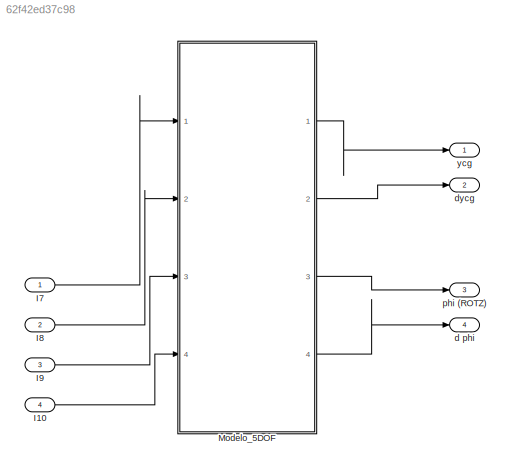
MODEL slx_62f42ed37c98
KIND model
CONFIG AbsTol = auto
CONFIG EnableMultiTasking = off
CONFIG FixedStep = T
CONFIG MaxStep = auto
CONFIG MinStep = auto
CONFIG RelTol = 1e-3
CONFIG SampleTimeConstraint = Unconstrained
CONFIG SolverName = VariableStepAuto
CONFIG StartTime = 0.0
CONFIG StopTime = 5
BLOCK [Inport] I10
  Port = 4
BLOCK [Inport] I7
BLOCK [Inport] I8
  Port = 2
BLOCK [Inport] I9
  Port = 3
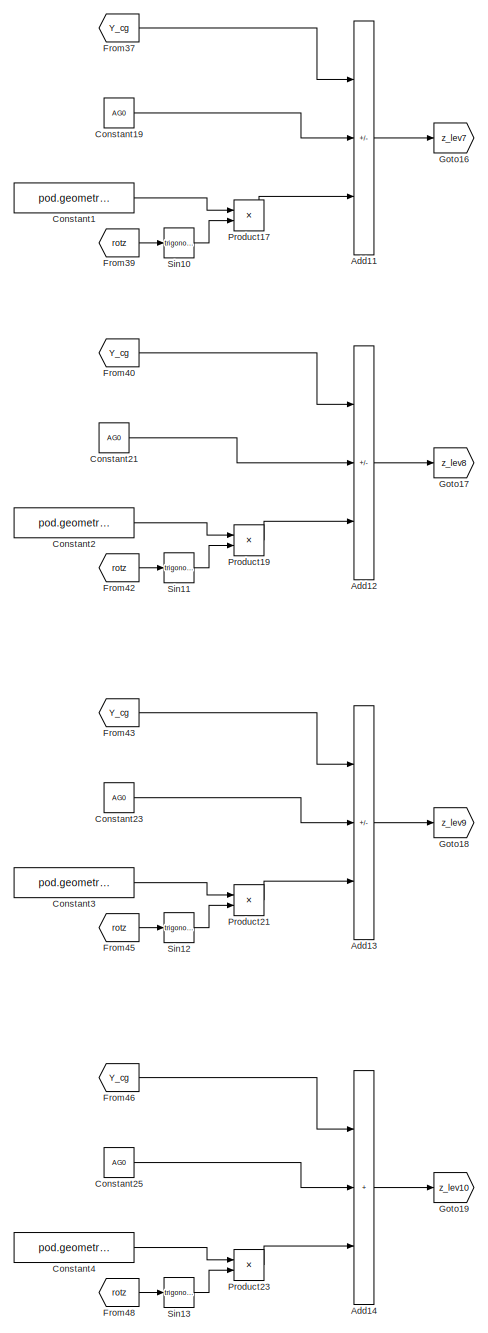
[diagram: Modelo_5DOF - part 1/3, right side, full height]
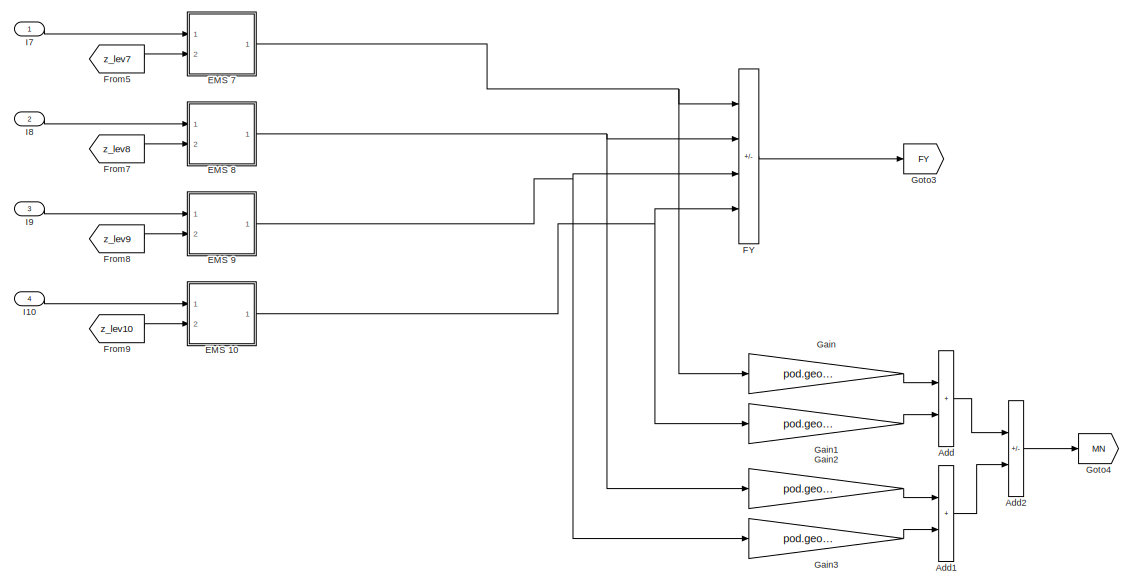
[diagram: Modelo_5DOF - part 2/3, middle left region]
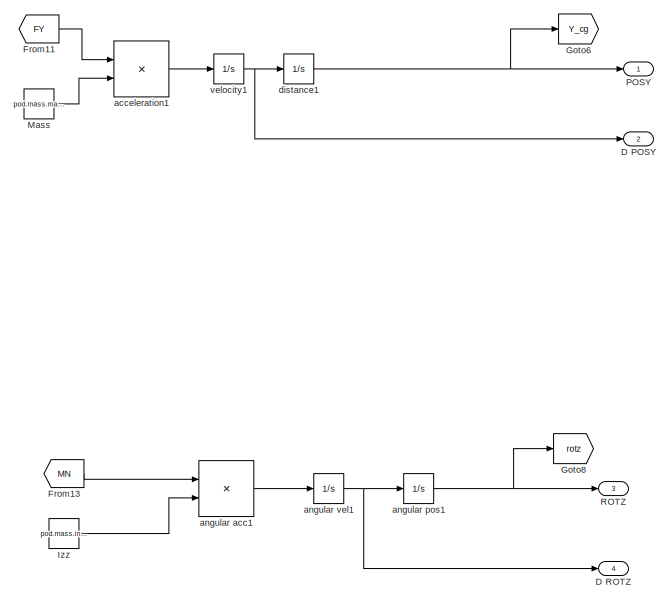
[diagram: Modelo_5DOF - part 3/3, central region]
BLOCK [SubSystem] Modelo_5DOF
  Ports = [4, 4]
  RequestExecContextInheritance = off
BLOCK [Sum] Modelo_5DOF/Add
  IconShape = rectangular
  Ports = [2, 1]
BLOCK [Sum] Modelo_5DOF/Add1
  IconShape = rectangular
  Ports = [2, 1]
BLOCK [Sum] Modelo_5DOF/Add11
  IconShape = rectangular
  Inputs = -++
  Ports = [3, 1]
BLOCK [Sum] Modelo_5DOF/Add12
  IconShape = rectangular
  Inputs = -+-
  Ports = [3, 1]
BLOCK [Sum] Modelo_5DOF/Add13
  IconShape = rectangular
  Inputs = ++-
  Ports = [3, 1]
BLOCK [Sum] Modelo_5DOF/Add14
  IconShape = rectangular
  Inputs = +++
  Ports = [3, 1]
BLOCK [Sum] Modelo_5DOF/Add2
  IconShape = rectangular
  Inputs = +-
  Ports = [2, 1]
BLOCK [Constant] Modelo_5DOF/Constant1
  Value = pod.geometry.x_G_front
BLOCK [Constant] Modelo_5DOF/Constant19
  Value = AG0
BLOCK [Constant] Modelo_5DOF/Constant2
  Value = pod.geometry.x_G_rear
BLOCK [Constant] Modelo_5DOF/Constant21
  Value = AG0
BLOCK [Constant] Modelo_5DOF/Constant23
  Value = AG0
BLOCK [Constant] Modelo_5DOF/Constant25
  Value = AG0
BLOCK [Constant] Modelo_5DOF/Constant3
  Value = pod.geometry.x_G_front
BLOCK [Constant] Modelo_5DOF/Constant4
  Value = pod.geometry.x_G_rear
BLOCK [Outport] Modelo_5DOF/D POSY
  Port = 2
  VectorParamsAs1DForOutWhenUnconnected = off
BLOCK [Outport] Modelo_5DOF/D ROTZ
  Port = 4
  VectorParamsAs1DForOutWhenUnconnected = off
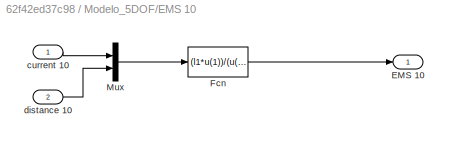
BLOCK [SubSystem] Modelo_5DOF/EMS 10
  Ports = [2, 1]
  RequestExecContextInheritance = off
BLOCK [Outport] Modelo_5DOF/EMS 10/EMS 10
  VectorParamsAs1DForOutWhenUnconnected = off
BLOCK [Fcn] Modelo_5DOF/EMS 10/Fcn
  Expr = (l1*u(1))/(u(2)*l3+l2)^2
BLOCK [Mux] Modelo_5DOF/EMS 10/Mux
  DisplayOption = bar
  Inputs = 2
  Ports = [2, 1]
BLOCK [Inport] Modelo_5DOF/EMS 10/current 10
BLOCK [Inport] Modelo_5DOF/EMS 10/distance 10
  Port = 2
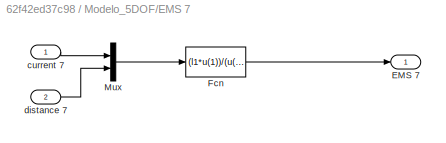
BLOCK [SubSystem] Modelo_5DOF/EMS 7
  Ports = [2, 1]
  RequestExecContextInheritance = off
BLOCK [Outport] Modelo_5DOF/EMS 7/EMS 7
  VectorParamsAs1DForOutWhenUnconnected = off
BLOCK [Fcn] Modelo_5DOF/EMS 7/Fcn
  Expr = (l1*u(1))/(u(2)*l3+l2)^2
BLOCK [Mux] Modelo_5DOF/EMS 7/Mux
  DisplayOption = bar
  Inputs = 2
  Ports = [2, 1]
BLOCK [Inport] Modelo_5DOF/EMS 7/current 7
BLOCK [Inport] Modelo_5DOF/EMS 7/distance 7
  Port = 2
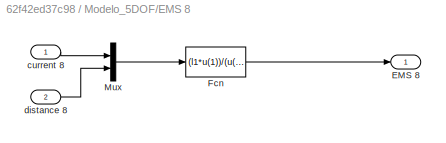
BLOCK [SubSystem] Modelo_5DOF/EMS 8
  Ports = [2, 1]
  RequestExecContextInheritance = off
BLOCK [Outport] Modelo_5DOF/EMS 8/EMS 8
  VectorParamsAs1DForOutWhenUnconnected = off
BLOCK [Fcn] Modelo_5DOF/EMS 8/Fcn
  Expr = (l1*u(1))/(u(2)*l3+l2)^2
BLOCK [Mux] Modelo_5DOF/EMS 8/Mux
  DisplayOption = bar
  Inputs = 2
  Ports = [2, 1]
BLOCK [Inport] Modelo_5DOF/EMS 8/current 8
BLOCK [Inport] Modelo_5DOF/EMS 8/distance 8
  Port = 2
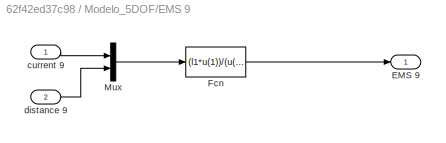
BLOCK [SubSystem] Modelo_5DOF/EMS 9
  Ports = [2, 1]
  RequestExecContextInheritance = off
BLOCK [Outport] Modelo_5DOF/EMS 9/EMS 9
  VectorParamsAs1DForOutWhenUnconnected = off
BLOCK [Fcn] Modelo_5DOF/EMS 9/Fcn
  Expr = (l1*u(1))/(u(2)*l3+l2)^2
BLOCK [Mux] Modelo_5DOF/EMS 9/Mux
  DisplayOption = bar
  Inputs = 2
  Ports = [2, 1]
BLOCK [Inport] Modelo_5DOF/EMS 9/current 9
BLOCK [Inport] Modelo_5DOF/EMS 9/distance 9
  Port = 2
BLOCK [Sum] Modelo_5DOF/FY
  IconShape = rectangular
  Inputs = ++--
  Ports = [4, 1]
BLOCK [From] Modelo_5DOF/From11
  GotoTag = FY
BLOCK [From] Modelo_5DOF/From13
  GotoTag = MN
BLOCK [From] Modelo_5DOF/From37
  GotoTag = Y_cg
BLOCK [From] Modelo_5DOF/From39
  GotoTag = rotz
BLOCK [From] Modelo_5DOF/From40
  GotoTag = Y_cg
BLOCK [From] Modelo_5DOF/From42
  GotoTag = rotz
BLOCK [From] Modelo_5DOF/From43
  GotoTag = Y_cg
BLOCK [From] Modelo_5DOF/From45
  GotoTag = rotz
BLOCK [From] Modelo_5DOF/From46
  GotoTag = Y_cg
BLOCK [From] Modelo_5DOF/From48
  GotoTag = rotz
BLOCK [From] Modelo_5DOF/From5
  GotoTag = z_lev7
BLOCK [From] Modelo_5DOF/From7
  GotoTag = z_lev8
BLOCK [From] Modelo_5DOF/From8
  GotoTag = z_lev9
BLOCK [From] Modelo_5DOF/From9
  GotoTag = z_lev10
BLOCK [Gain] Modelo_5DOF/Gain
  Gain = pod.geometry.x_G_front
BLOCK [Gain] Modelo_5DOF/Gain1
  Gain = pod.geometry.x_G_rear
BLOCK [Gain] Modelo_5DOF/Gain2
  Gain = pod.geometry.x_G_rear
BLOCK [Gain] Modelo_5DOF/Gain3
  Gain = pod.geometry.x_G_front
BLOCK [Goto] Modelo_5DOF/Goto16
  GotoTag = z_lev7
BLOCK [Goto] Modelo_5DOF/Goto17
  GotoTag = z_lev8
BLOCK [Goto] Modelo_5DOF/Goto18
  GotoTag = z_lev9
BLOCK [Goto] Modelo_5DOF/Goto19
  GotoTag = z_lev10
BLOCK [Goto] Modelo_5DOF/Goto3
  GotoTag = FY
BLOCK [Goto] Modelo_5DOF/Goto4
  GotoTag = MN
BLOCK [Goto] Modelo_5DOF/Goto6
  GotoTag = Y_cg
BLOCK [Goto] Modelo_5DOF/Goto8
  GotoTag = rotz
BLOCK [Inport] Modelo_5DOF/I10
  Port = 4
BLOCK [Inport] Modelo_5DOF/I7
BLOCK [Inport] Modelo_5DOF/I8
  Port = 2
BLOCK [Inport] Modelo_5DOF/I9
  Port = 3
BLOCK [Constant] Modelo_5DOF/Izz
  Value = pod.mass.inertia(3,3)
BLOCK [Constant] Modelo_5DOF/Mass
  Value = pod.mass.mass
BLOCK [Outport] Modelo_5DOF/POSY
  VectorParamsAs1DForOutWhenUnconnected = off
BLOCK [Product] Modelo_5DOF/Product17
  Ports = [2, 1]
BLOCK [Product] Modelo_5DOF/Product19
  Ports = [2, 1]
BLOCK [Product] Modelo_5DOF/Product21
  Ports = [2, 1]
BLOCK [Product] Modelo_5DOF/Product23
  Ports = [2, 1]
BLOCK [Outport] Modelo_5DOF/ROTZ
  Port = 3
  VectorParamsAs1DForOutWhenUnconnected = off
BLOCK [Trigonometry] Modelo_5DOF/Sin10
  Ports = [1, 1]
BLOCK [Trigonometry] Modelo_5DOF/Sin11
  Ports = [1, 1]
BLOCK [Trigonometry] Modelo_5DOF/Sin12
  Ports = [1, 1]
BLOCK [Trigonometry] Modelo_5DOF/Sin13
  Ports = [1, 1]
BLOCK [Product] Modelo_5DOF/acceleration1
  Inputs = */
  Ports = [2, 1]
BLOCK [Product] Modelo_5DOF/angular acc1
  Inputs = */
  Ports = [2, 1]
BLOCK [Integrator] Modelo_5DOF/angular pos1
  InitialCondition = ROTZ_0
  Ports = [1, 1]
BLOCK [Integrator] Modelo_5DOF/angular vel1
  Ports = [1, 1]
BLOCK [Integrator] Modelo_5DOF/distance1
  InitialCondition = y_ini
  Ports = [1, 1]
BLOCK [Integrator] Modelo_5DOF/velocity1
  Ports = [1, 1]
BLOCK [Outport] d phi
  Port = 4
  VectorParamsAs1DForOutWhenUnconnected = off
BLOCK [Outport] dycg
  Port = 2
  VectorParamsAs1DForOutWhenUnconnected = off
BLOCK [Outport] phi (ROTZ)
  Port = 3
  VectorParamsAs1DForOutWhenUnconnected = off
BLOCK [Outport] ycg
  VectorParamsAs1DForOutWhenUnconnected = off
LINE I10:1 -> Modelo_5DOF:4
LINE I7:1 -> Modelo_5DOF:1
LINE I8:1 -> Modelo_5DOF:2
LINE I9:1 -> Modelo_5DOF:3
LINE Modelo_5DOF/Add11:1 -> Modelo_5DOF/Goto16:1
LINE Modelo_5DOF/Add12:1 -> Modelo_5DOF/Goto17:1
LINE Modelo_5DOF/Add13:1 -> Modelo_5DOF/Goto18:1
LINE Modelo_5DOF/Add14:1 -> Modelo_5DOF/Goto19:1
LINE Modelo_5DOF/Add1:1 -> Modelo_5DOF/Add2:2
LINE Modelo_5DOF/Add2:1 -> Modelo_5DOF/Goto4:1
LINE Modelo_5DOF/Add:1 -> Modelo_5DOF/Add2:1
LINE Modelo_5DOF/Constant19:1 -> Modelo_5DOF/Add11:2
LINE Modelo_5DOF/Constant1:1 -> Modelo_5DOF/Product17:1
LINE Modelo_5DOF/Constant21:1 -> Modelo_5DOF/Add12:2
LINE Modelo_5DOF/Constant23:1 -> Modelo_5DOF/Add13:2
LINE Modelo_5DOF/Constant25:1 -> Modelo_5DOF/Add14:2
LINE Modelo_5DOF/Constant2:1 -> Modelo_5DOF/Product19:1
LINE Modelo_5DOF/Constant3:1 -> Modelo_5DOF/Product21:1
LINE Modelo_5DOF/Constant4:1 -> Modelo_5DOF/Product23:1
LINE Modelo_5DOF/EMS 10/Fcn:1 -> Modelo_5DOF/EMS 10/EMS 10:1
LINE Modelo_5DOF/EMS 10/Mux:1 -> Modelo_5DOF/EMS 10/Fcn:1
LINE Modelo_5DOF/EMS 10/current 10:1 -> Modelo_5DOF/EMS 10/Mux:1
LINE Modelo_5DOF/EMS 10/distance 10:1 -> Modelo_5DOF/EMS 10/Mux:2
NET Modelo_5DOF/EMS 10:1 -> Modelo_5DOF/FY:4, Modelo_5DOF/Gain1:1
LINE Modelo_5DOF/EMS 7/Fcn:1 -> Modelo_5DOF/EMS 7/EMS 7:1
LINE Modelo_5DOF/EMS 7/Mux:1 -> Modelo_5DOF/EMS 7/Fcn:1
LINE Modelo_5DOF/EMS 7/current 7:1 -> Modelo_5DOF/EMS 7/Mux:1
LINE Modelo_5DOF/EMS 7/distance 7:1 -> Modelo_5DOF/EMS 7/Mux:2
NET Modelo_5DOF/EMS 7:1 -> Modelo_5DOF/FY:1, Modelo_5DOF/Gain:1
LINE Modelo_5DOF/EMS 8/Fcn:1 -> Modelo_5DOF/EMS 8/EMS 8:1
LINE Modelo_5DOF/EMS 8/Mux:1 -> Modelo_5DOF/EMS 8/Fcn:1
LINE Modelo_5DOF/EMS 8/current 8:1 -> Modelo_5DOF/EMS 8/Mux:1
LINE Modelo_5DOF/EMS 8/distance 8:1 -> Modelo_5DOF/EMS 8/Mux:2
NET Modelo_5DOF/EMS 8:1 -> Modelo_5DOF/FY:2, Modelo_5DOF/Gain2:1
LINE Modelo_5DOF/EMS 9/Fcn:1 -> Modelo_5DOF/EMS 9/EMS 9:1
LINE Modelo_5DOF/EMS 9/Mux:1 -> Modelo_5DOF/EMS 9/Fcn:1
LINE Modelo_5DOF/EMS 9/current 9:1 -> Modelo_5DOF/EMS 9/Mux:1
LINE Modelo_5DOF/EMS 9/distance 9:1 -> Modelo_5DOF/EMS 9/Mux:2
NET Modelo_5DOF/EMS 9:1 -> Modelo_5DOF/FY:3, Modelo_5DOF/Gain3:1
LINE Modelo_5DOF/FY:1 -> Modelo_5DOF/Goto3:1
LINE Modelo_5DOF/From11:1 -> Modelo_5DOF/acceleration1:1
LINE Modelo_5DOF/From13:1 -> Modelo_5DOF/angular acc1:1
LINE Modelo_5DOF/From37:1 -> Modelo_5DOF/Add11:1
LINE Modelo_5DOF/From39:1 -> Modelo_5DOF/Sin10:1
LINE Modelo_5DOF/From40:1 -> Modelo_5DOF/Add12:1
LINE Modelo_5DOF/From42:1 -> Modelo_5DOF/Sin11:1
LINE Modelo_5DOF/From43:1 -> Modelo_5DOF/Add13:1
LINE Modelo_5DOF/From45:1 -> Modelo_5DOF/Sin12:1
LINE Modelo_5DOF/From46:1 -> Modelo_5DOF/Add14:1
LINE Modelo_5DOF/From48:1 -> Modelo_5DOF/Sin13:1
LINE Modelo_5DOF/From5:1 -> Modelo_5DOF/EMS 7:2
LINE Modelo_5DOF/From7:1 -> Modelo_5DOF/EMS 8:2
LINE Modelo_5DOF/From8:1 -> Modelo_5DOF/EMS 9:2
LINE Modelo_5DOF/From9:1 -> Modelo_5DOF/EMS 10:2
LINE Modelo_5DOF/Gain1:1 -> Modelo_5DOF/Add:2
LINE Modelo_5DOF/Gain2:1 -> Modelo_5DOF/Add1:1
LINE Modelo_5DOF/Gain3:1 -> Modelo_5DOF/Add1:2
LINE Modelo_5DOF/Gain:1 -> Modelo_5DOF/Add:1
LINE Modelo_5DOF/I10:1 -> Modelo_5DOF/EMS 10:1
LINE Modelo_5DOF/I7:1 -> Modelo_5DOF/EMS 7:1
LINE Modelo_5DOF/I8:1 -> Modelo_5DOF/EMS 8:1
LINE Modelo_5DOF/I9:1 -> Modelo_5DOF/EMS 9:1
LINE Modelo_5DOF/Izz:1 -> Modelo_5DOF/angular acc1:2
LINE Modelo_5DOF/Mass:1 -> Modelo_5DOF/acceleration1:2
LINE Modelo_5DOF/Product17:1 -> Modelo_5DOF/Add11:3
LINE Modelo_5DOF/Product19:1 -> Modelo_5DOF/Add12:3
LINE Modelo_5DOF/Product21:1 -> Modelo_5DOF/Add13:3
LINE Modelo_5DOF/Product23:1 -> Modelo_5DOF/Add14:3
LINE Modelo_5DOF/Sin10:1 -> Modelo_5DOF/Product17:2
LINE Modelo_5DOF/Sin11:1 -> Modelo_5DOF/Product19:2
LINE Modelo_5DOF/Sin12:1 -> Modelo_5DOF/Product21:2
LINE Modelo_5DOF/Sin13:1 -> Modelo_5DOF/Product23:2
LINE Modelo_5DOF/acceleration1:1 -> Modelo_5DOF/velocity1:1
LINE Modelo_5DOF/angular acc1:1 -> Modelo_5DOF/angular vel1:1
NET Modelo_5DOF/angular pos1:1 -> Modelo_5DOF/Goto8:1, Modelo_5DOF/ROTZ:1
NET Modelo_5DOF/angular vel1:1 -> Modelo_5DOF/D ROTZ:1, Modelo_5DOF/angular pos1:1
NET Modelo_5DOF/distance1:1 -> Modelo_5DOF/Goto6:1, Modelo_5DOF/POSY:1
NET Modelo_5DOF/velocity1:1 -> Modelo_5DOF/D POSY:1, Modelo_5DOF/distance1:1
LINE Modelo_5DOF:1 -> ycg:1
LINE Modelo_5DOF:2 -> dycg:1
LINE Modelo_5DOF:3 -> phi (ROTZ):1
LINE Modelo_5DOF:4 -> d phi:1
note: NET lines group one-source signal fan-out (src -> all destinations, sorted); 1:1 wires keep LINE
